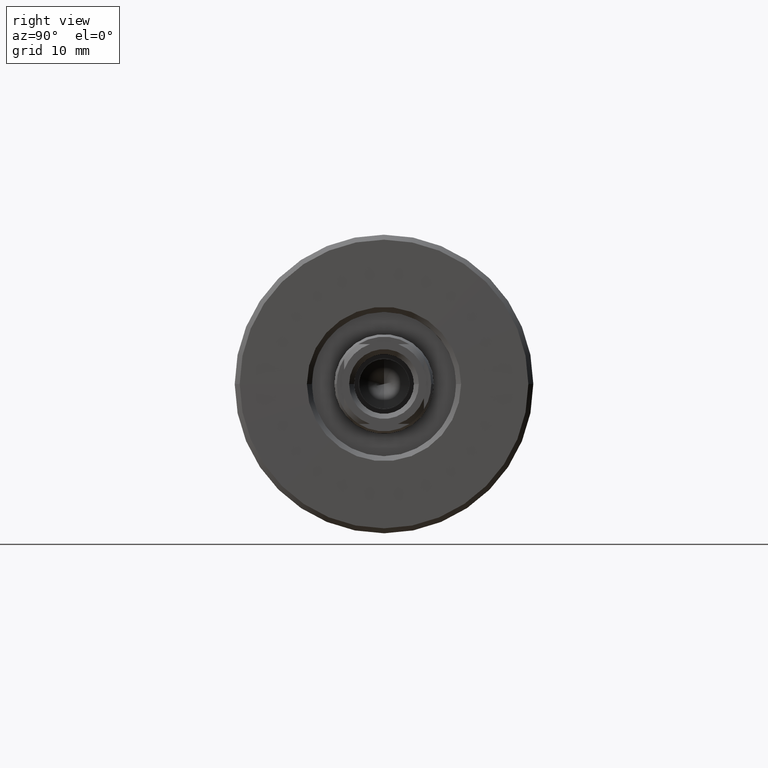
[diagram: clean part render]
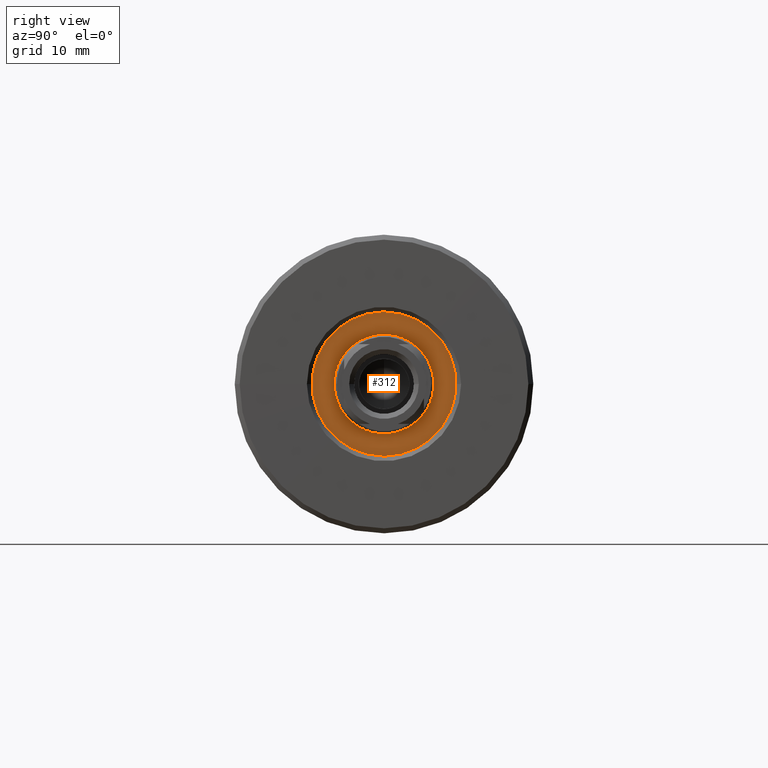
[diagram: same view with one face highlighted and labeled with its STEP entity id]
A machine part, right view. The second image highlights one B-rep face of the part: STEP entity #312.
In plain terms, the highlighted planar face has unit normal (1, 0, 0).
Its self-contained STEP definition (entity closure, byte-faithful):
#54 = FACE_OUTER_BOUND ( 'NONE', #1356, .T. ) ;
#67 = CARTESIAN_POINT ( 'NONE',  ( -1.500000000000000000, 0.000000000000000000, 0.000000000000000000 ) ) ;
#137 = AXIS2_PLACEMENT_3D ( 'NONE', #531, #2400, #1105 ) ;
#249 = ORIENTED_EDGE ( 'NONE', *, *, #1741, .T. ) ;
#256 = CARTESIAN_POINT ( 'NONE',  ( -1.500000000000000000, 0.000000000000000000, 0.000000000000000000 ) ) ;
#312 = ADVANCED_FACE ( 'NONE', ( #2350, #54 ), #856, .T. ) ;
#364 = CIRCLE ( 'NONE', #497, 5.000000000000000000 ) ;
#403 = ORIENTED_EDGE ( 'NONE', *, *, #1235, .T. ) ;
#414 = CIRCLE ( 'NONE', #1611, 7.250000000000000000 ) ;
#464 = DIRECTION ( 'NONE',  ( 0.000000000000000000, 0.000000000000000000, -1.000000000000000000 ) ) ;
#497 = AXIS2_PLACEMENT_3D ( 'NONE', #748, #2150, #958 ) ;
#531 = CARTESIAN_POINT ( 'NONE',  ( -1.500000000000000000, 0.000000000000000000, 0.000000000000000000 ) ) ;
#608 = DIRECTION ( 'NONE',  ( 0.000000000000000000, 0.000000000000000000, -1.000000000000000000 ) ) ;
#748 = CARTESIAN_POINT ( 'NONE',  ( -1.500000000000000000, 0.000000000000000000, 0.000000000000000000 ) ) ;
#856 = PLANE ( 'NONE',  #2112 ) ;
#947 = DIRECTION ( 'NONE',  ( 1.000000000000000000, 0.000000000000000000, 0.000000000000000000 ) ) ;
#958 = DIRECTION ( 'NONE',  ( 0.000000000000000000, 0.000000000000000000, -1.000000000000000000 ) ) ;
#970 = DIRECTION ( 'NONE',  ( 0.000000000000000000, 0.000000000000000000, -1.000000000000000000 ) ) ;
#1003 = DIRECTION ( 'NONE',  ( 1.000000000000000000, 0.000000000000000000, 0.000000000000000000 ) ) ;
#1011 = VERTEX_POINT ( 'NONE', #1462 ) ;
#1105 = DIRECTION ( 'NONE',  ( 0.000000000000000000, 0.000000000000000000, -1.000000000000000000 ) ) ;
#1128 = EDGE_CURVE ( 'NONE', #2397, #2129, #364, .T. ) ;
#1235 = EDGE_CURVE ( 'NONE', #2241, #1011, #414, .T. ) ;
#1245 = CARTESIAN_POINT ( 'NONE',  ( -1.500000000000000000, 0.000000000000000000, -5.000000000000000000 ) ) ;
#1316 = AXIS2_PLACEMENT_3D ( 'NONE', #2119, #947, #970 ) ;
#1356 = EDGE_LOOP ( 'NONE', ( #403, #249 ) ) ;
#1377 = DIRECTION ( 'NONE',  ( 1.000000000000000000, 0.000000000000000000, 0.000000000000000000 ) ) ;
#1462 = CARTESIAN_POINT ( 'NONE',  ( -1.500000000000000000, 8.878689293818310074E-16, 7.250000000000000000 ) ) ;
#1611 = AXIS2_PLACEMENT_3D ( 'NONE', #67, #1003, #608 ) ;
#1741 = EDGE_CURVE ( 'NONE', #1011, #2241, #1774, .T. ) ;
#1774 = CIRCLE ( 'NONE', #137, 7.250000000000000000 ) ;
#1802 = CIRCLE ( 'NONE', #1316, 5.000000000000000000 ) ;
#2049 = CARTESIAN_POINT ( 'NONE',  ( -1.500000000000000000, 0.000000000000000000, -7.250000000000000000 ) ) ;
#2112 = AXIS2_PLACEMENT_3D ( 'NONE', #256, #1377, #464 ) ;
#2119 = CARTESIAN_POINT ( 'NONE',  ( -1.500000000000000000, 0.000000000000000000, 0.000000000000000000 ) ) ;
#2129 = VERTEX_POINT ( 'NONE', #1245 ) ;
#2150 = DIRECTION ( 'NONE',  ( 1.000000000000000000, 0.000000000000000000, 0.000000000000000000 ) ) ;
#2209 = EDGE_LOOP ( 'NONE', ( #2387, #2443 ) ) ;
#2241 = VERTEX_POINT ( 'NONE', #2049 ) ;
#2305 = CARTESIAN_POINT ( 'NONE',  ( -1.500000000000000000, 6.123233995736766282E-16, 5.000000000000000000 ) ) ;
#2350 = FACE_BOUND ( 'NONE', #2209, .T. ) ;
#2380 = EDGE_CURVE ( 'NONE', #2129, #2397, #1802, .T. ) ;
#2387 = ORIENTED_EDGE ( 'NONE', *, *, #2380, .F. ) ;
#2397 = VERTEX_POINT ( 'NONE', #2305 ) ;
#2400 = DIRECTION ( 'NONE',  ( 1.000000000000000000, 0.000000000000000000, 0.000000000000000000 ) ) ;
#2443 = ORIENTED_EDGE ( 'NONE', *, *, #1128, .F. ) ;